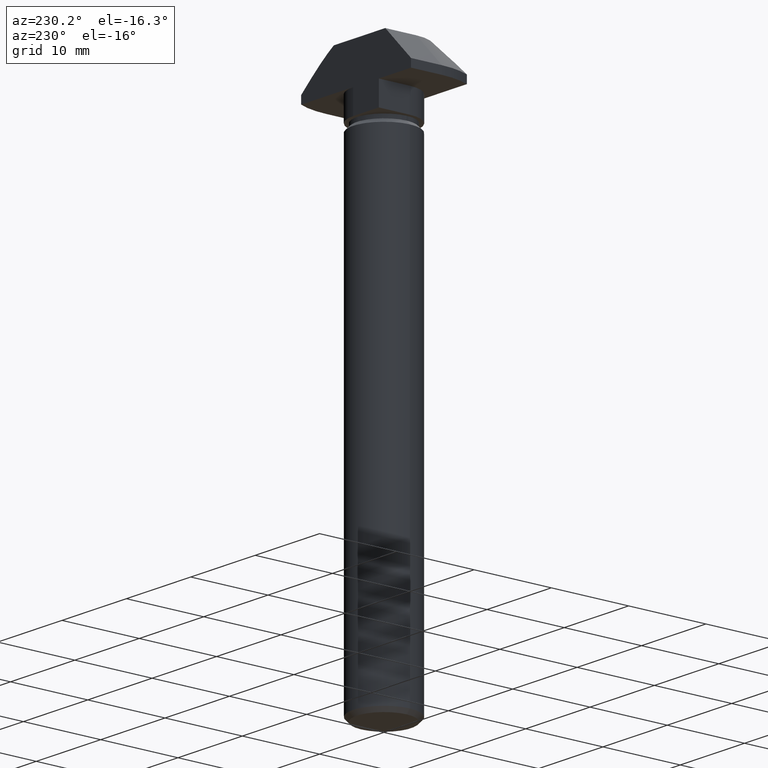
[diagram: clean part render]
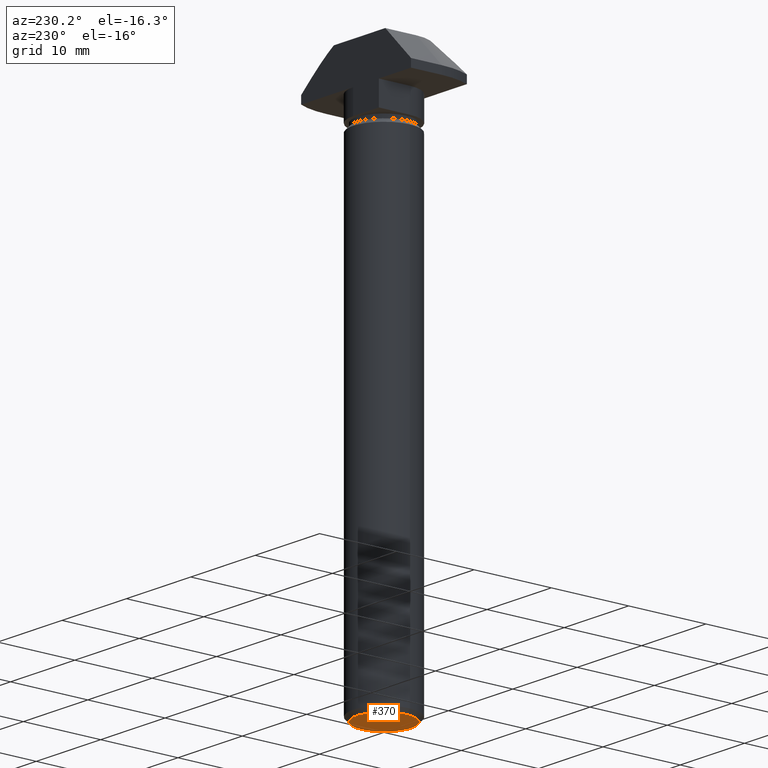
[diagram: same view with one face highlighted and labeled with its STEP entity id]
A machine part, auxiliary view. The second image highlights one B-rep face of the part: STEP entity #370.
In plain terms, the highlighted planar face has unit normal (0, 0, 1).
Its self-contained STEP definition (entity closure, byte-faithful):
#85=PLANE('',#399);
#112=FACE_OUTER_BOUND('',#138,.T.);
#138=EDGE_LOOP('',(#267));
#163=CIRCLE('',#398,3.5);
#178=VERTEX_POINT('',#552);
#213=EDGE_CURVE('',#178,#178,#163,.T.);
#267=ORIENTED_EDGE('',*,*,#213,.F.);
#370=ADVANCED_FACE('',(#112),#85,.F.);
#398=AXIS2_PLACEMENT_3D('',#553,#444,#445);
#399=AXIS2_PLACEMENT_3D('',#554,#446,#447);
#444=DIRECTION('center_axis',(0.,0.,1.));
#445=DIRECTION('ref_axis',(1.,0.,0.));
#446=DIRECTION('center_axis',(0.,0.,1.));
#447=DIRECTION('ref_axis',(1.,0.,0.));
#552=CARTESIAN_POINT('',(-3.5,-4.28626379701574E-16,-70.));
#553=CARTESIAN_POINT('Origin',(0.,0.,-70.));
#554=CARTESIAN_POINT('Origin',(2.72118023435153E-16,0.,-70.));